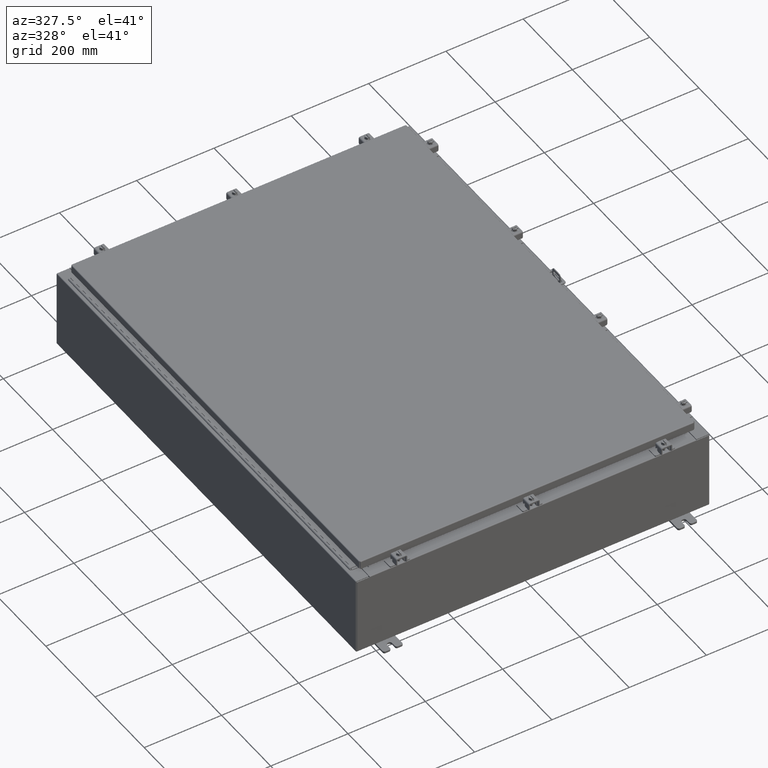
[diagram: clean part render]
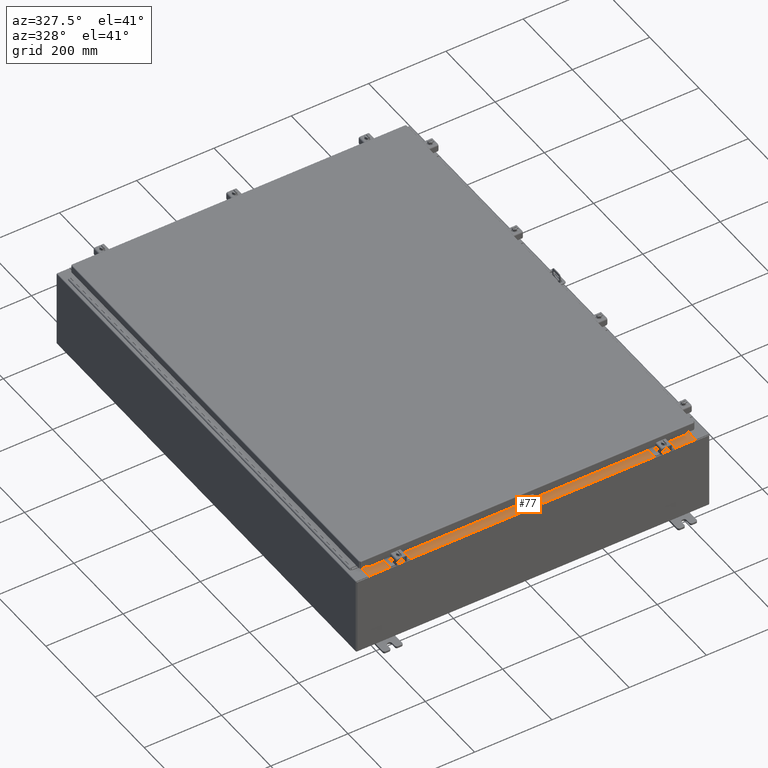
[diagram: same view with one face highlighted and labeled with its STEP entity id]
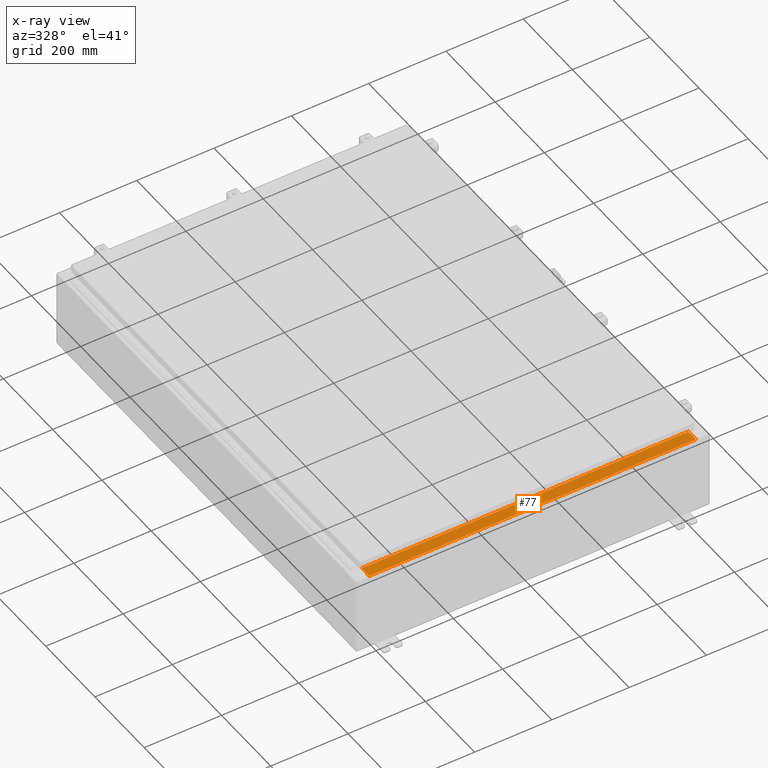
[diagram: x-ray of the same camera — body ghosted, the highlighted face saturated]
A machine part, auxiliary view. The second image highlights one B-rep face of the part: STEP entity #77.
The next image is the same camera in x-ray: the body ghosted, the highlighted face saturated — about 0% of this face is hidden behind the body in this view.
In plain terms, the highlighted planar face has unit normal (-0, -0, 1).
Its self-contained STEP definition (entity closure, byte-faithful):
#43 = DIRECTION ( 'NONE',  ( -2.688223102148497900E-016, -1.000000000000000000, 3.734140369554233100E-015 ) ) ;
#77 = ADVANCED_FACE ( 'NONE', ( #6611 ), #42396, .T. ) ;
#425 = LINE ( 'NONE', #34184, #51892 ) ;
#3061 = CARTESIAN_POINT ( 'NONE',  ( 16.63720000000000400, -1.287299999999999200, 4.000000000000016900 ) ) ;
#4538 = LINE ( 'NONE', #47315, #15869 ) ;
#6611 = FACE_OUTER_BOUND ( 'NONE', #28515, .T. ) ;
#6888 = CARTESIAN_POINT ( 'NONE',  ( 16.63720000000000700, -0.08770000000000026400, 4.000000000000012400 ) ) ;
#7257 = AXIS2_PLACEMENT_3D ( 'NONE', #16821, #46716, #21169 ) ;
#8321 = EDGE_CURVE ( 'NONE', #26626, #43833, #29259, .T. ) ;
#10453 = CARTESIAN_POINT ( 'NONE',  ( 3.304213269176772700E-015, -0.08770000000000026400, 4.000000000000000900 ) ) ;
#10628 = CARTESIAN_POINT ( 'NONE',  ( -16.63719999999999600, -1.287299999999999200, 3.999999999999993800 ) ) ;
#11330 = ORIENTED_EDGE ( 'NONE', *, *, #52591, .F. ) ;
#13660 = EDGE_CURVE ( 'NONE', #26626, #51523, #425, .T. ) ;
#15869 = VECTOR ( 'NONE', #17402, 39.37007874015748100 ) ;
#16580 = LINE ( 'NONE', #19165, #49340 ) ;
#16821 = CARTESIAN_POINT ( 'NONE',  ( 3.330669074331396100E-015, 1.311287036958846300E-014, 4.000000000000000900 ) ) ;
#17402 = DIRECTION ( 'NONE',  ( 2.688223102148497900E-016, 1.000000000000000000, -3.734140369554233100E-015 ) ) ;
#17919 = ORIENTED_EDGE ( 'NONE', *, *, #13660, .F. ) ;
#19165 = CARTESIAN_POINT ( 'NONE',  ( 16.63720000000000700, -1.287299999999999200, 4.000000000000016900 ) ) ;
#20596 = EDGE_CURVE ( 'NONE', #50375, #43833, #4538, .T. ) ;
#21169 = DIRECTION ( 'NONE',  ( -2.688223102148497400E-016, -1.000000000000000000, 3.734140369554233100E-015 ) ) ;
#26237 = ORIENTED_EDGE ( 'NONE', *, *, #20596, .F. ) ;
#26626 = VERTEX_POINT ( 'NONE', #6888 ) ;
#28515 = EDGE_LOOP ( 'NONE', ( #26237, #11330, #17919, #39682 ) ) ;
#29259 = LINE ( 'NONE', #10453, #40573 ) ;
#34184 = CARTESIAN_POINT ( 'NONE',  ( 16.63720000000000400, -1.300300000000001300, 4.000000000000016900 ) ) ;
#36026 = DIRECTION ( 'NONE',  ( -1.000000000000000000, -2.359820727510455800E-016, -8.326672684688674100E-016 ) ) ;
#39682 = ORIENTED_EDGE ( 'NONE', *, *, #8321, .T. ) ;
#40573 = VECTOR ( 'NONE', #36026, 39.37007874015748100 ) ;
#42396 = PLANE ( 'NONE',  #7257 ) ;
#43833 = VERTEX_POINT ( 'NONE', #43847 ) ;
#43847 = CARTESIAN_POINT ( 'NONE',  ( -16.63719999999999600, -0.08770000000000026400, 3.999999999999989800 ) ) ;
#44715 = DIRECTION ( 'NONE',  ( -1.000000000000000000, -2.688223102148527500E-016, -8.326672684688674100E-016 ) ) ;
#46716 = DIRECTION ( 'NONE',  ( 8.326672684688675000E-016, 3.734140369554233100E-015, 1.000000000000000000 ) ) ;
#47315 = CARTESIAN_POINT ( 'NONE',  ( -16.63719999999999600, -0.07470000000000234800, 3.999999999999989800 ) ) ;
#49340 = VECTOR ( 'NONE', #44715, 39.37007874015748100 ) ;
#50375 = VERTEX_POINT ( 'NONE', #10628 ) ;
#51523 = VERTEX_POINT ( 'NONE', #3061 ) ;
#51892 = VECTOR ( 'NONE', #43, 39.37007874015748100 ) ;
#52591 = EDGE_CURVE ( 'NONE', #51523, #50375, #16580, .T. ) ;